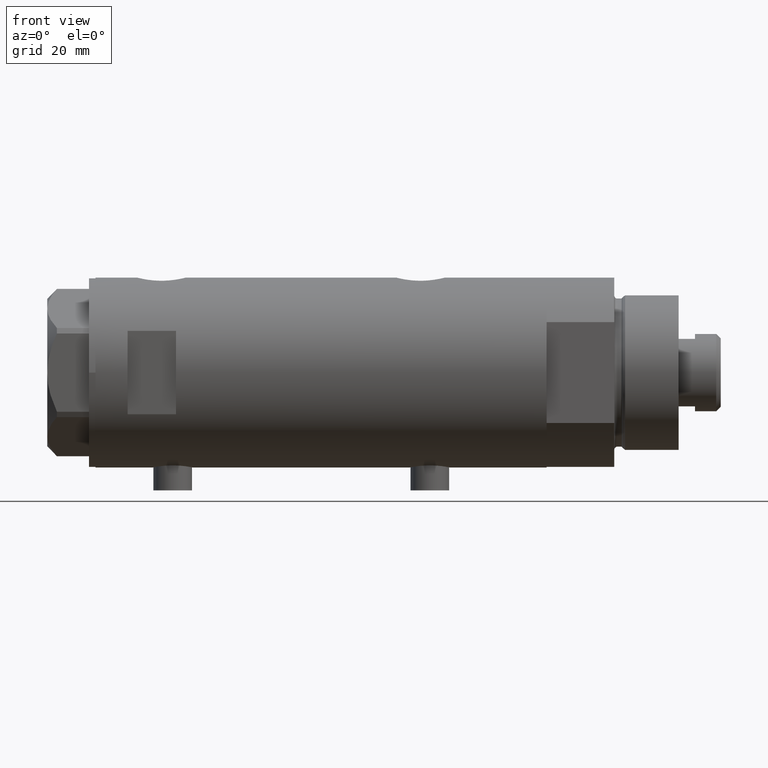
[diagram: clean part render]
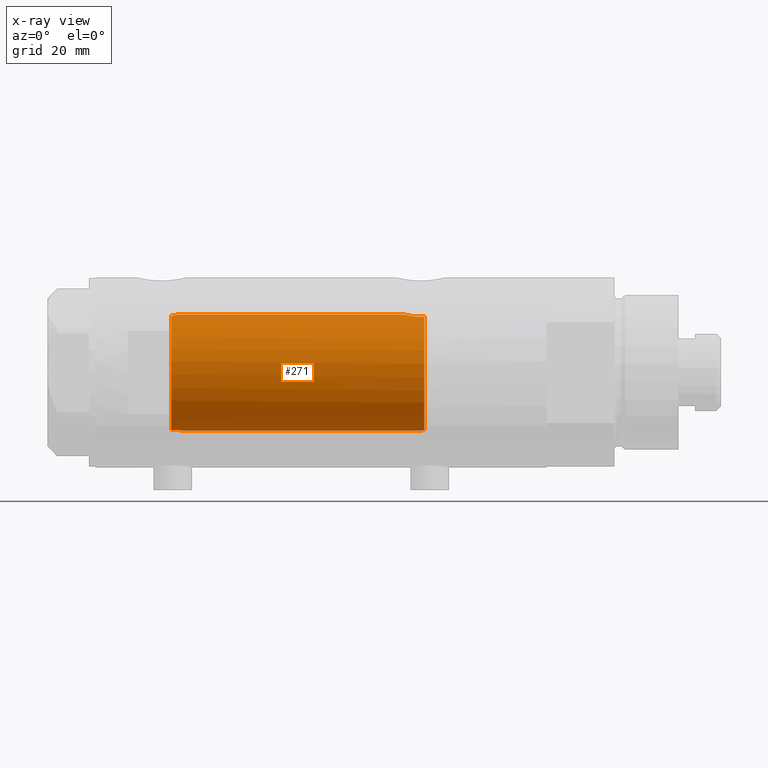
[diagram: x-ray — body ghosted, one internal face saturated and labeled with its STEP entity id]
A machine part, front view, then the same camera in x-ray: the body is ghosted and one INTERNAL B-rep face — a face not visible from any outside direction — is saturated and labeled: STEP entity #271.
In plain terms, the highlighted cylindrical surface (partial cylindrical patch) has radius 18 mm, axis along (1, 0, -0).
Its self-contained STEP definition (entity closure, byte-faithful):
#33 = DIRECTION ( 'NONE',  ( 0.000000000000000000, 0.000000000000000000, -1.000000000000000000 ) ) ;
#53 = CARTESIAN_POINT ( 'NONE',  ( -17.91828950152698141, -1.717113519283112621, -31.97501239504632764 ) ) ;
#162 = CARTESIAN_POINT ( 'NONE',  ( -18.00000000000000000, 3.061617490167439571E-16, 43.59999999999999432 ) ) ;
#219 = CARTESIAN_POINT ( 'NONE',  ( 17.33821808943282861, -4.836569767017236288, -30.25823404381377912 ) ) ;
#243 = DIRECTION ( 'NONE',  ( -0.000000000000000000, -0.000000000000000000, -1.000000000000000000 ) ) ;
#271 = ADVANCED_FACE ( 'NONE', ( #622 ), #1820, .F. ) ;
#289 = EDGE_CURVE ( 'NONE', #3815, #4643, #4758, .T. ) ;
#315 = CARTESIAN_POINT ( 'NONE',  ( -17.98606631708114278, -0.7305574711896795082, 43.70204290403500380 ) ) ;
#334 = CIRCLE ( 'NONE', #3055, 18.00000000000000000 ) ;
#341 = CARTESIAN_POINT ( 'NONE',  ( -17.97805023087035536, -0.9044555994579360769, 43.76193320698389755 ) ) ;
#494 = CARTESIAN_POINT ( 'NONE',  ( 17.78501549309440222, -2.778062367771705343, -26.90196575702887927 ) ) ;
#522 = CARTESIAN_POINT ( 'NONE',  ( 17.34665145232711225, -4.806531086046566870, -31.73913341666349197 ) ) ;
#544 = VERTEX_POINT ( 'NONE', #2361 ) ;
#600 = CARTESIAN_POINT ( 'NONE',  ( -17.82612683294494005, -2.495839706835423666, 45.86589454130189125 ) ) ;
#622 = FACE_OUTER_BOUND ( 'NONE', #3871, .T. ) ;
#674 = CARTESIAN_POINT ( 'NONE',  ( -17.88290241330588870, -2.053167186750453066, 44.66182020544687248 ) ) ;
#725 = B_SPLINE_CURVE_WITH_KNOTS ( 'NONE', 3,
 ( #3449, #2325, #2284, #1599, #1220, #4536, #1532, #1577, #3026, #2658 ),
 .UNSPECIFIED., .F., .F.,
 ( 4, 2, 2, 2, 4 ),
 ( 2.959341624767055034E-19, 0.001102956581910075453, 0.002205913163820150905, 0.003308869745730225274, 0.004411826327640300076 ),
 .UNSPECIFIED. ) ;
#749 = CARTESIAN_POINT ( 'NONE',  ( 17.98578085412773220, -0.7388632979187842453, -26.08783263922210338 ) ) ;
#962 = DIRECTION ( 'NONE',  ( -0.000000000000000000, -0.000000000000000000, -1.000000000000000000 ) ) ;
#1004 = CARTESIAN_POINT ( 'NONE',  ( -17.99706720933242110, -0.3713053243946072279, 43.62087821822401423 ) ) ;
#1220 = CARTESIAN_POINT ( 'NONE',  ( 17.91197612045793619, -1.808534151376004040, 45.06883769349536806 ) ) ;
#1223 = CARTESIAN_POINT ( 'NONE',  ( -17.98087476242610450, -0.8443177746099965741, -31.44065868517810358 ) ) ;
#1264 = CARTESIAN_POINT ( 'NONE',  ( 18.00000000000000000, 0.000000000000000000, 44.73499999999999233 ) ) ;
#1288 = CARTESIAN_POINT ( 'NONE',  ( 0.000000000000000000, 0.000000000000000000, -32.09999999999998721 ) ) ;
#1293 = DIRECTION ( 'NONE',  ( 1.000000000000000000, 0.000000000000000000, 0.000000000000000000 ) ) ;
#1376 = B_SPLINE_CURVE_WITH_KNOTS ( 'NONE', 3,
 ( #2369, #522, #2399, #2053, #219, #1696, #1503, #4381, #2206, #4761, #1521, #4139, #494, #3780, #4615, #3598, #2839, #1665, #749, #2493, #2224, #4013 ),
 .UNSPECIFIED., .F., .F.,
 ( 4, 2, 2, 2, 2, 2, 2, 2, 2, 2, 4 ),
 ( 0.006434066725458738659, 0.007540005695425722881, 0.008645944665392707104, 0.009751883635359691327, 0.01085782260532667381, 0.01196376157529365977, 0.01251673106027715102, 0.01306970054526064226, 0.01417563951522762475, 0.01472860900021111599, 0.01528157848519460724 ),
 .UNSPECIFIED. ) ;
#1391 = DIRECTION ( 'NONE',  ( -1.000000000000000000, 0.000000000000000000, 0.000000000000000000 ) ) ;
#1406 = CARTESIAN_POINT ( 'NONE',  ( 0.000000000000000000, 0.000000000000000000, 70.09999999999999432 ) ) ;
#1412 = CARTESIAN_POINT ( 'NONE',  ( -17.95799318569972414, -1.240488120640597547, 43.92151761940910859 ) ) ;
#1436 = CARTESIAN_POINT ( 'NONE',  ( -17.87096055910521386, -2.153084948128371590, 44.81597358399613995 ) ) ;
#1503 = CARTESIAN_POINT ( 'NONE',  ( 17.41145422212636618, -4.568075757751900667, -29.18573299053985437 ) ) ;
#1521 = CARTESIAN_POINT ( 'NONE',  ( 17.68752450041759872, -3.351772203450732235, -27.35493447381010768 ) ) ;
#1529 = EDGE_CURVE ( 'NONE', #4037, #544, #3876, .T. ) ;
#1532 = CARTESIAN_POINT ( 'NONE',  ( 17.78689333688353003, -2.776822659814079941, 45.58837617090290451 ) ) ;
#1577 = CARTESIAN_POINT ( 'NONE',  ( 17.68806959355791264, -3.349106256179507746, 46.05213344176307544 ) ) ;
#1599 = CARTESIAN_POINT ( 'NONE',  ( 17.94467453319816386, -1.455166008437401626, 44.94318072553844701 ) ) ;
#1630 = AXIS2_PLACEMENT_3D ( 'NONE', #1288, #33, #1391 ) ;
#1665 = CARTESIAN_POINT ( 'NONE',  ( 17.97721305204034792, -0.9231636963562657172, -26.11982822371821200 ) ) ;
#1696 = CARTESIAN_POINT ( 'NONE',  ( 17.37991340314490785, -4.684530256828847605, -29.53638461192320364 ) ) ;
#1765 = ORIENTED_EDGE ( 'NONE', *, *, #4655, .T. ) ;
#1795 = CARTESIAN_POINT ( 'NONE',  ( -18.00000000000000000, -0.1841775174153941208, 43.59999999999998721 ) ) ;
#1820 = CYLINDRICAL_SURFACE ( 'NONE', #2083, 18.00000000000000000 ) ;
#1823 = CARTESIAN_POINT ( 'NONE',  ( -17.90808592989841941, -1.820481405547631937, 44.37671706610176869 ) ) ;
#1965 = CARTESIAN_POINT ( 'NONE',  ( -17.99749915382407295, -0.3435624397781262274, -31.31782900444971673 ) ) ;
#2053 = CARTESIAN_POINT ( 'NONE',  ( 17.32819690210316210, -4.871720223791780491, -30.63420793424217337 ) ) ;
#2083 = AXIS2_PLACEMENT_3D ( 'NONE', #1406, #243, #2149 ) ;
#2100 = ORIENTED_EDGE ( 'NONE', *, *, #2875, .T. ) ;
#2149 = DIRECTION ( 'NONE',  ( -1.000000000000000000, 0.000000000000000000, 0.000000000000000000 ) ) ;
#2154 = CARTESIAN_POINT ( 'NONE',  ( 17.58783030962034033, -3.829911878881814058, 46.59999999999999432 ) ) ;
#2206 = CARTESIAN_POINT ( 'NONE',  ( 17.53680980608543649, -4.063678955652868297, -28.20014584461345919 ) ) ;
#2224 = CARTESIAN_POINT ( 'NONE',  ( 17.99999999999999645, -0.1843597763241279219, -26.03499999999997883 ) ) ;
#2284 = CARTESIAN_POINT ( 'NONE',  ( 17.98842269988416120, -0.7385803848020525697, 44.77734794098787319 ) ) ;
#2325 = CARTESIAN_POINT ( 'NONE',  ( 18.00000000000001066, -0.3730735969061054202, 44.73499999999999233 ) ) ;
#2328 = CARTESIAN_POINT ( 'NONE',  ( -17.96337851667309948, -1.158344505448045458, -31.57792845501181134 ) ) ;
#2352 = CARTESIAN_POINT ( 'NONE',  ( -17.90642342847952051, -1.833030277982339085, -32.09999999999999432 ) ) ;
#2361 = CARTESIAN_POINT ( 'NONE',  ( -18.00000000000000000, 0.000000000000000000, -31.29999999999999361 ) ) ;
#2369 = CARTESIAN_POINT ( 'NONE',  ( 17.37157951943346035, -4.714681855650494136, -32.09999999999998721 ) ) ;
#2399 = CARTESIAN_POINT ( 'NONE',  ( 17.33258131920084466, -4.856098292894137636, -31.37181853595665615 ) ) ;
#2493 = CARTESIAN_POINT ( 'NONE',  ( 17.99716838826709520, -0.3690012331666958634, -26.04544422515623481 ) ) ;
#2527 = CARTESIAN_POINT ( 'NONE',  ( -17.84161419608464172, -2.383019834242969370, 45.32214247304368371 ) ) ;
#2540 = EDGE_CURVE ( 'NONE', #3815, #3907, #725, .T. ) ;
#2658 = CARTESIAN_POINT ( 'NONE',  ( 17.58783030962034033, -3.829911878881814058, 46.59999999999999432 ) ) ;
#2700 = CARTESIAN_POINT ( 'NONE',  ( -17.90642342847952051, -1.833030277982339085, -32.09999999999999432 ) ) ;
#2798 = CIRCLE ( 'NONE', #1630, 18.00000000000000000 ) ;
#2801 = DIRECTION ( 'NONE',  ( 0.000000000000000000, 0.000000000000000000, 1.000000000000000000 ) ) ;
#2839 = CARTESIAN_POINT ( 'NONE',  ( 17.94411621822183278, -1.462318180775791454, -26.24532018047458948 ) ) ;
#2843 = CARTESIAN_POINT ( 'NONE',  ( 18.00000000000000000, 2.204364238465235033E-15, 70.09999999999999432 ) ) ;
#2850 = ORIENTED_EDGE ( 'NONE', *, *, #4466, .F. ) ;
#2852 = EDGE_CURVE ( 'NONE', #4376, #4643, #1376, .T. ) ;
#2858 = ORIENTED_EDGE ( 'NONE', *, *, #2852, .F. ) ;
#2875 = EDGE_CURVE ( 'NONE', #4376, #3409, #2798, .T. ) ;
#2916 = ORIENTED_EDGE ( 'NONE', *, *, #2540, .F. ) ;
#2931 = CARTESIAN_POINT ( 'NONE',  ( -17.83255450012700649, -2.449489742783180546, 46.59999999999999432 ) ) ;
#3026 = CARTESIAN_POINT ( 'NONE',  ( 17.63693340989344449, -3.604419224588191639, 46.31212766824009464 ) ) ;
#3047 = VERTEX_POINT ( 'NONE', #4334 ) ;
#3055 = AXIS2_PLACEMENT_3D ( 'NONE', #3978, #2801, #1293 ) ;
#3124 = ORIENTED_EDGE ( 'NONE', *, *, #3891, .F. ) ;
#3302 = CARTESIAN_POINT ( 'NONE',  ( -17.82961222738138218, -2.471215990870976320, 45.67936073756538207 ) ) ;
#3408 = CARTESIAN_POINT ( 'NONE',  ( -17.93047387985761532, -1.586765192895364107, -31.86050750712786339 ) ) ;
#3409 = VERTEX_POINT ( 'NONE', #2352 ) ;
#3414 = B_SPLINE_CURVE_WITH_KNOTS ( 'NONE', 3,
 ( #2931, #4764, #3969, #600, #3302, #2527, #3685, #1436, #674, #1823, #4020, #4787, #1412, #341, #315, #1004, #1795, #3656 ),
 .UNSPECIFIED., .F., .F.,
 ( 4, 2, 2, 2, 2, 2, 2, 2, 4 ),
 ( 0.003411560698164756156, 0.003963315334502517072, 0.004515069970840277988, 0.005066824607178038037, 0.005618579243515798953, 0.006170333879853559002, 0.006722088516191319918, 0.007273843152529079967, 0.007825597788866840016 ),
 .UNSPECIFIED. ) ;
#3449 = CARTESIAN_POINT ( 'NONE',  ( 18.00000000000000000, 0.000000000000000000, 44.73499999999999233 ) ) ;
#3598 = CARTESIAN_POINT ( 'NONE',  ( 17.91207243579358988, -1.808254927071299534, -26.36838658940774494 ) ) ;
#3656 = CARTESIAN_POINT ( 'NONE',  ( -18.00000000000000000, 3.061617490167439571E-16, 43.59999999999999432 ) ) ;
#3673 = CARTESIAN_POINT ( 'NONE',  ( 17.37157951943346035, -4.714681855650494136, -32.09999999999998721 ) ) ;
#3685 = CARTESIAN_POINT ( 'NONE',  ( -17.85016385956371110, -2.319193024669687020, 45.14824249665360867 ) ) ;
#3780 = CARTESIAN_POINT ( 'NONE',  ( 17.83055549281852237, -2.468946622824477188, -26.70402443991357444 ) ) ;
#3815 = VERTEX_POINT ( 'NONE', #1264 ) ;
#3863 = B_SPLINE_CURVE_WITH_KNOTS ( 'NONE', 3,
 ( #4224, #4512, #1965, #4539, #1223, #2328, #4189, #3408, #53, #2700 ),
 .UNSPECIFIED., .F., .F.,
 ( 4, 2, 2, 2, 4 ),
 ( 7.710833376258529741E-20, 0.0005125302075870184033, 0.001025060415174036590, 0.001537590622761054885, 0.002050120830348073180 ),
 .UNSPECIFIED. ) ;
#3871 = EDGE_LOOP ( 'NONE', ( #2916, #4325, #2858, #2100, #2850, #4479, #3124, #1765 ) ) ;
#3876 = LINE ( 'NONE', #4223, #3967 ) ;
#3891 = EDGE_CURVE ( 'NONE', #3047, #4037, #3414, .T. ) ;
#3907 = VERTEX_POINT ( 'NONE', #2154 ) ;
#3967 = VECTOR ( 'NONE', #962, 1000.000000000000000 ) ;
#3969 = CARTESIAN_POINT ( 'NONE',  ( -17.82509864081395534, -2.503172417495155067, 46.23471843340850285 ) ) ;
#3978 = CARTESIAN_POINT ( 'NONE',  ( 0.000000000000000000, 0.000000000000000000, 46.59999999999999432 ) ) ;
#3991 = DIRECTION ( 'NONE',  ( -0.000000000000000000, -0.000000000000000000, -1.000000000000000000 ) ) ;
#4013 = CARTESIAN_POINT ( 'NONE',  ( 18.00000000000000000, 5.958021437579254357E-16, -26.03499999999998948 ) ) ;
#4020 = CARTESIAN_POINT ( 'NONE',  ( -17.92141329387995796, -1.686416898391165820, 44.24534892242944295 ) ) ;
#4037 = VERTEX_POINT ( 'NONE', #162 ) ;
#4123 = VECTOR ( 'NONE', #3991, 1000.000000000000000 ) ;
#4139 = CARTESIAN_POINT ( 'NONE',  ( 17.76113839466169253, -2.926207082530023040, -27.00911996042637497 ) ) ;
#4189 = CARTESIAN_POINT ( 'NONE',  ( -17.95304693865649881, -1.306837002857225816, -31.66186250319235995 ) ) ;
#4223 = CARTESIAN_POINT ( 'NONE',  ( -18.00000000000000000, 0.000000000000000000, 70.09999999999999432 ) ) ;
#4224 = CARTESIAN_POINT ( 'NONE',  ( -18.00000000000000000, 0.000000000000000000, -31.29999999999999361 ) ) ;
#4325 = ORIENTED_EDGE ( 'NONE', *, *, #289, .T. ) ;
#4334 = CARTESIAN_POINT ( 'NONE',  ( -17.83255450012700649, -2.449489742783180546, 46.59999999999999432 ) ) ;
#4376 = VERTEX_POINT ( 'NONE', #3673 ) ;
#4381 = CARTESIAN_POINT ( 'NONE',  ( 17.49057517990651789, -4.255095079290338589, -28.51249222525178695 ) ) ;
#4466 = EDGE_CURVE ( 'NONE', #544, #3409, #3863, .T. ) ;
#4479 = ORIENTED_EDGE ( 'NONE', *, *, #1529, .F. ) ;
#4512 = CARTESIAN_POINT ( 'NONE',  ( -18.00000000000000355, -0.1733192664045242748, -31.29999999999998650 ) ) ;
#4536 = CARTESIAN_POINT ( 'NONE',  ( 17.83332390923721533, -2.466220319593706023, 45.39048875048362675 ) ) ;
#4539 = CARTESIAN_POINT ( 'NONE',  ( -17.98799916691379153, -0.6781569973338291701, -31.38767516943829250 ) ) ;
#4615 = CARTESIAN_POINT ( 'NONE',  ( 17.85233710017094921, -2.306965814323740815, -26.61276266371618604 ) ) ;
#4643 = VERTEX_POINT ( 'NONE', #4646 ) ;
#4646 = CARTESIAN_POINT ( 'NONE',  ( 18.00000000000000000, 5.958021437579254357E-16, -26.03499999999998948 ) ) ;
#4655 = EDGE_CURVE ( 'NONE', #3047, #3907, #334, .T. ) ;
#4758 = LINE ( 'NONE', #2843, #4123 ) ;
#4761 = CARTESIAN_POINT ( 'NONE',  ( 17.63516507807922906, -3.613050995810184407, -27.62150009659157490 ) ) ;
#4764 = CARTESIAN_POINT ( 'NONE',  ( -17.82745028959547184, -2.486648956350799633, 46.41795777503244835 ) ) ;
#4787 = CARTESIAN_POINT ( 'NONE',  ( -17.94627262678028856, -1.397267050535908828, 44.01880386215051999 ) ) ;